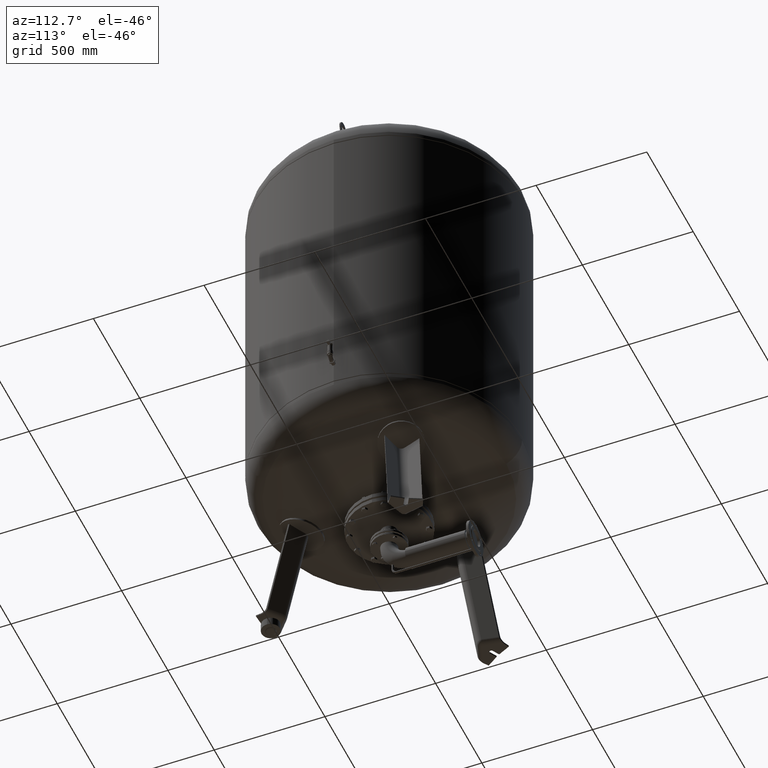
[diagram: clean part render]
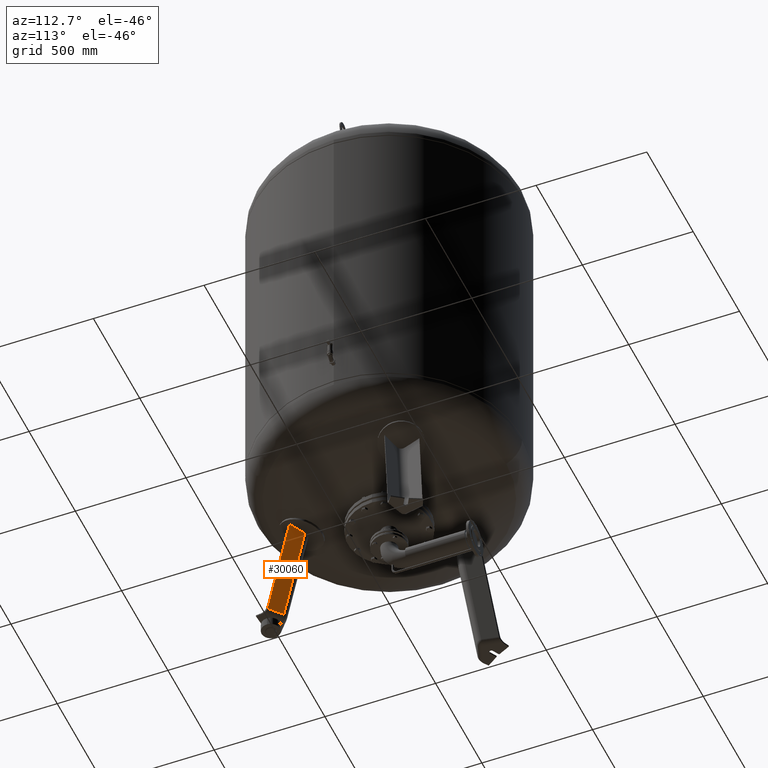
[diagram: same view with one face highlighted and labeled with its STEP entity id]
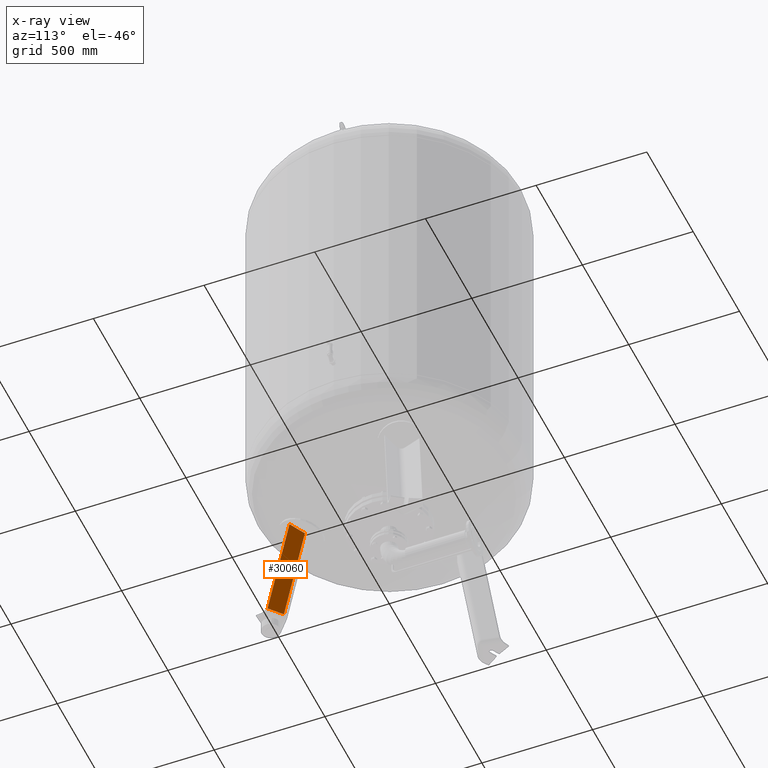
[diagram: x-ray of the same camera — body ghosted, the highlighted face saturated]
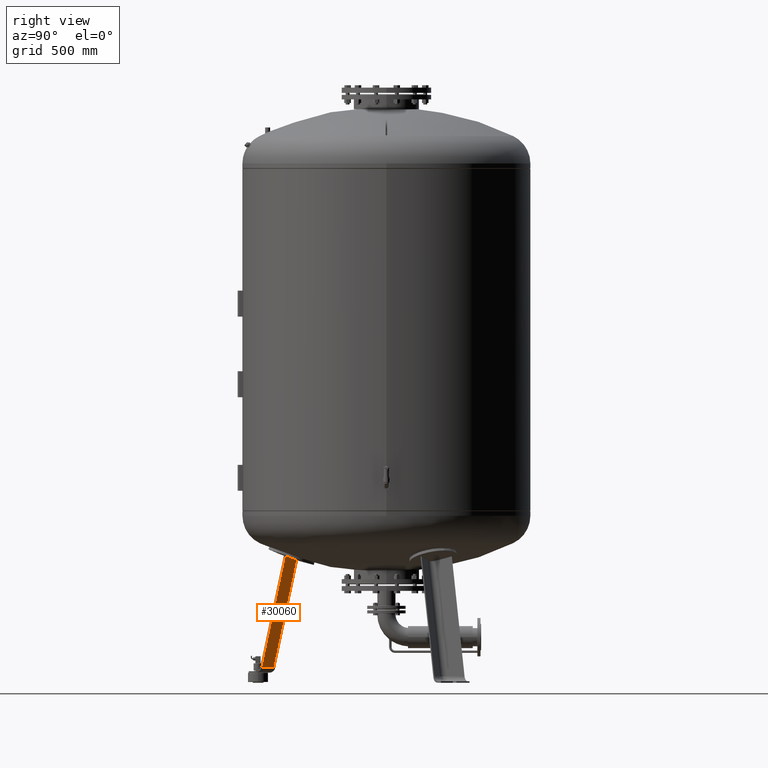
[diagram: same view with one face highlighted and labeled with its STEP entity id]
A machine part, auxiliary view. The second image highlights one B-rep face of the part: STEP entity #30060.
The next image is the same camera in x-ray: the body ghosted, the highlighted face saturated — about 0% of this face is hidden behind the body in this view.
A second angle (right view) of the same face is appended — the face is thin or edge-on in the first view.
In plain terms, the highlighted planar face has unit normal (0.6455, 0.7471, -0.1588).
Its self-contained STEP definition (entity closure, byte-faithful):
#29328=CARTESIAN_POINT('',(16.136450826554551,-469.470961811045530,63.029948423057277));
#29329=VERTEX_POINT('',#29328);
#29546=CARTESIAN_POINT('',(73.500000000000014,-519.029946471096990,63.029948423057284));
#29547=VERTEX_POINT('',#29546);
#29548=CARTESIAN_POINT('',(16.136450826554551,-469.470961811045530,63.029948423057277));
#29549=DIRECTION('',(0.756707249513243,-0.653753882232529,9.373075E-017));
#29550=VECTOR('',#29549,75.806792138366546);
#29551=LINE('',#29548,#29550);
#29552=EDGE_CURVE('',#29329,#29547,#29551,.T.);
#29862=CARTESIAN_POINT('',(16.136450826554654,-374.264158951643140,510.942739782579960));
#29863=VERTEX_POINT('',#29862);
#29864=CARTESIAN_POINT('',(73.500000000000114,-419.920615973365670,529.302688812935000));
#29865=VERTEX_POINT('',#29864);
#29866=CARTESIAN_POINT('',(-41.020088505273414,-118.861225454164180,1480.203780025492300));
#29867=DIRECTION('',(-0.645458033062182,-0.747104967402682,0.158802063077709));
#29868=DIRECTION('',(-5.092368E-017,-0.207911690817760,-0.978147600733805));
#29869=AXIS2_PLACEMENT_3D('',#29866,#29867,#29868);
#29870=CIRCLE('',#29869,1003.974348556914600);
#29871=EDGE_CURVE('',#29863,#29865,#29870,.T.);
#30026=CARTESIAN_POINT('',(16.136450826554654,-374.264158951643140,510.942739782579960));
#30027=DIRECTION('',(-2.249931E-016,-0.207911690817760,-0.978147600733805));
#30028=VECTOR('',#30027,457.919429566150200);
#30029=LINE('',#30026,#30028);
#30030=EDGE_CURVE('',#29863,#29329,#30029,.T.);
#30044=CARTESIAN_POINT('',(1.724896E-014,-472.440357983691800,-16.527282742766886));
#30045=DIRECTION('',(0.645458033062182,0.747104967402682,-0.158802063077709));
#30046=DIRECTION('',(-1.655020E-016,-0.207911690817760,-0.978147600733806));
#30047=AXIS2_PLACEMENT_3D('',#30044,#30045,#30046);
#30048=PLANE('',#30047);
#30049=CARTESIAN_POINT('',(73.500000000000014,-519.029946471096990,63.029948423057284));
#30050=DIRECTION('',(2.086809E-016,0.207911690817759,0.978147600733806));
#30051=VECTOR('',#30050,476.689550779534950);
#30052=LINE('',#30049,#30051);
#30053=EDGE_CURVE('',#29547,#29865,#30052,.T.);
#30054=ORIENTED_EDGE('',*,*,#30053,.F.);
#30055=ORIENTED_EDGE('',*,*,#29552,.F.);
#30056=ORIENTED_EDGE('',*,*,#30030,.F.);
#30057=ORIENTED_EDGE('',*,*,#29871,.T.);
#30058=EDGE_LOOP('',(#30054,#30055,#30056,#30057));
#30059=FACE_OUTER_BOUND('',#30058,.T.);
#30060=ADVANCED_FACE('',(#30059),#30048,.T.);